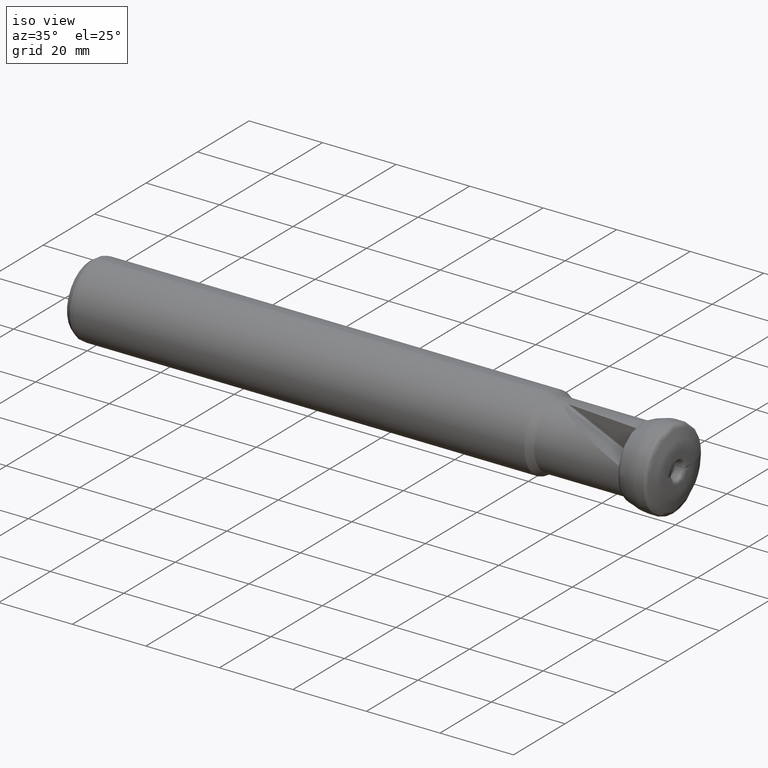
[diagram: clean part render]
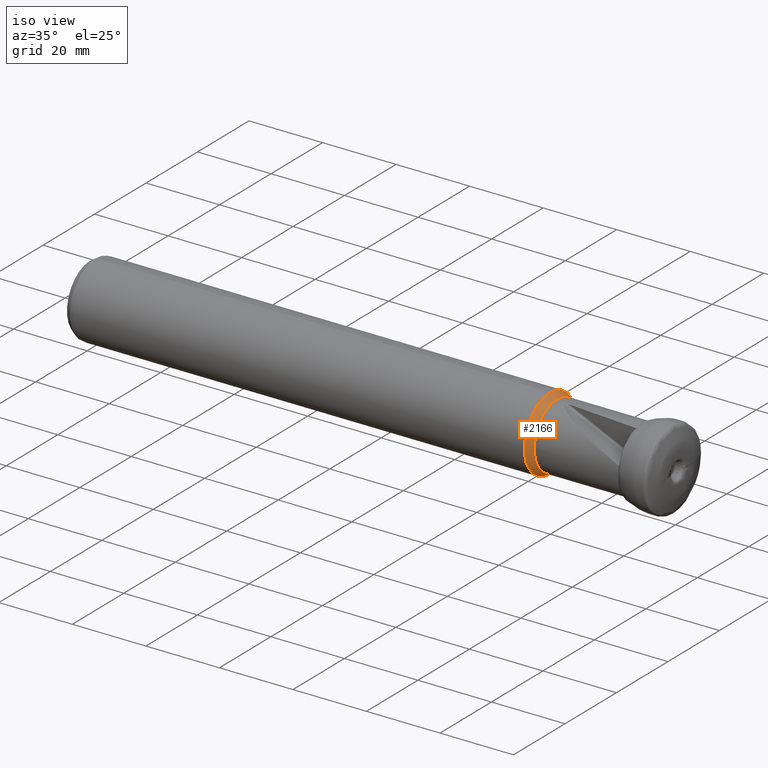
[diagram: same view with one face highlighted and labeled with its STEP entity id]
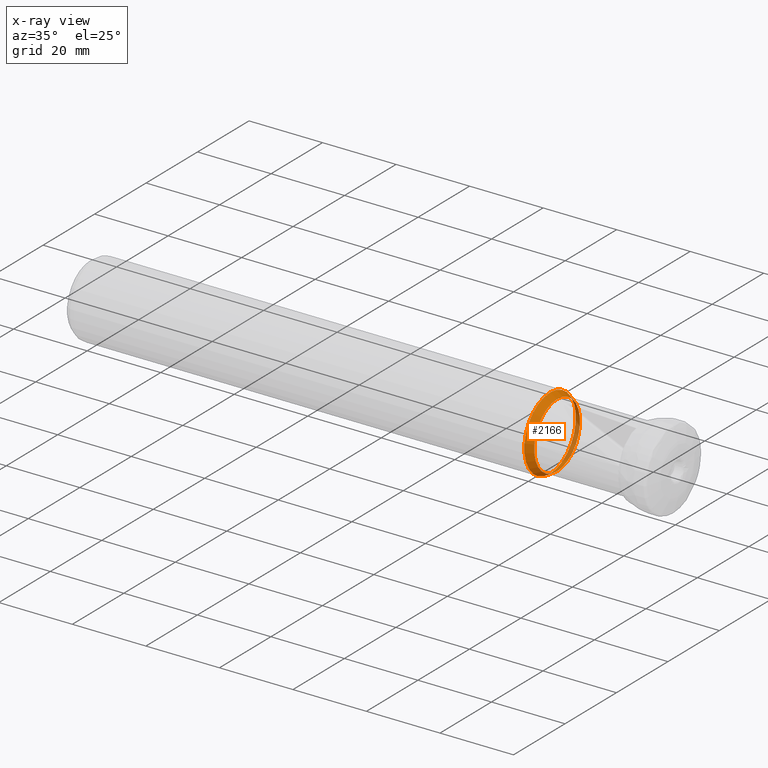
[diagram: x-ray of the same camera — body ghosted, the highlighted face saturated]
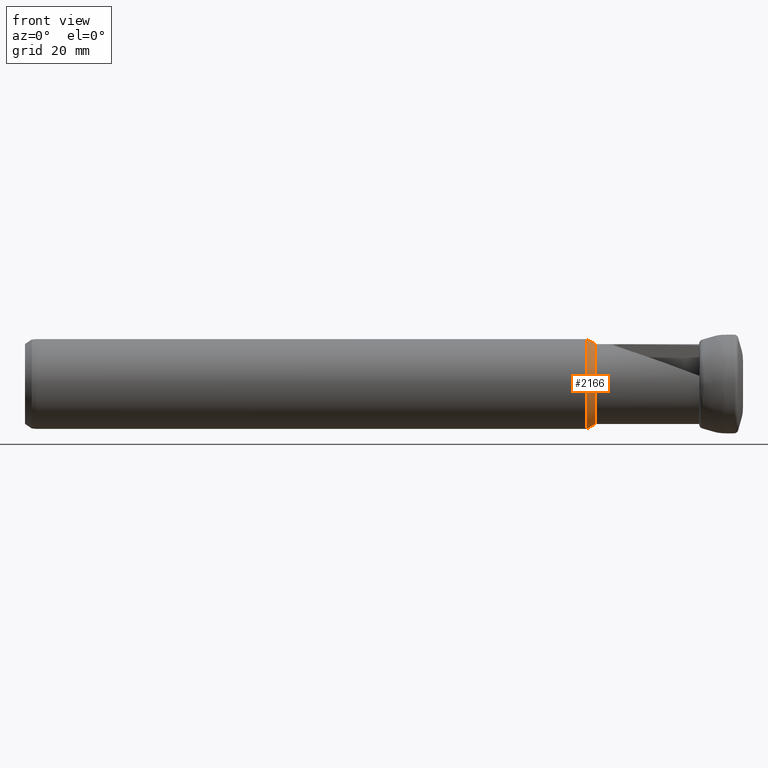
[diagram: same view with one face highlighted and labeled with its STEP entity id]
A machine part, iso view. The second image highlights one B-rep face of the part: STEP entity #2166.
The next image is the same camera in x-ray: the body ghosted, the highlighted face saturated — about 14% of this face is hidden behind the body in this view.
A second angle (front view) of the same face is appended — the face is thin or edge-on in the first view.
In plain terms, the highlighted conical surface has half-angle 30 deg.
Its self-contained STEP definition (entity closure, byte-faithful):
#27 = EDGE_LOOP ( 'NONE', ( #474 ) ) ;
#172 = EDGE_CURVE ( 'NONE', #1425, #1425, #1428, .T. ) ;
#192 = AXIS2_PLACEMENT_3D ( 'NONE', #403, #741, #212 ) ;
#212 = DIRECTION ( 'NONE',  ( 0.0000000000000000000, 0.0000000000000000000, 1.000000000000000000 ) ) ;
#398 = AXIS2_PLACEMENT_3D ( 'NONE', #1990, #958, #2163 ) ;
#403 = CARTESIAN_POINT ( 'NONE',  ( -32.16253903091737200, 0.0000000000000000000, 0.0000000000000000000 ) ) ;
#474 = ORIENTED_EDGE ( 'NONE', *, *, #172, .F. ) ;
#483 = AXIS2_PLACEMENT_3D ( 'NONE', #1885, #855, #1030 ) ;
#741 = DIRECTION ( 'NONE',  ( -1.000000000000000000, 0.0000000000000000000, 0.0000000000000000000 ) ) ;
#767 = CARTESIAN_POINT ( 'NONE',  ( -32.16253903091737200, 0.0000000000000000000, -8.899999999999995000 ) ) ;
#855 = DIRECTION ( 'NONE',  ( 1.000000000000000000, -0.0000000000000000000, -0.0000000000000000000 ) ) ;
#887 = CIRCLE ( 'NONE', #398, 10.00000000000000000 ) ;
#958 = DIRECTION ( 'NONE',  ( 1.000000000000000000, -0.0000000000000000000, -0.0000000000000000000 ) ) ;
#960 = ORIENTED_EDGE ( 'NONE', *, *, #1152, .T. ) ;
#1018 = CONICAL_SURFACE ( 'NONE', #192, 8.899999999999995000, 0.5235987755982990400 ) ;
#1030 = DIRECTION ( 'NONE',  ( 0.0000000000000000000, 0.0000000000000000000, -1.000000000000000000 ) ) ;
#1048 = EDGE_LOOP ( 'NONE', ( #960 ) ) ;
#1152 = EDGE_CURVE ( 'NONE', #2095, #2095, #887, .T. ) ;
#1284 = FACE_BOUND ( 'NONE', #27, .T. ) ;
#1425 = VERTEX_POINT ( 'NONE', #767 ) ;
#1428 = CIRCLE ( 'NONE', #483, 8.899999999999995000 ) ;
#1885 = CARTESIAN_POINT ( 'NONE',  ( -32.16253903091737200, 0.0000000000000000000, 0.0000000000000000000 ) ) ;
#1983 = FACE_OUTER_BOUND ( 'NONE', #1048, .T. ) ;
#1990 = CARTESIAN_POINT ( 'NONE',  ( -34.06779491924314800, 0.0000000000000000000, 0.0000000000000000000 ) ) ;
#2095 = VERTEX_POINT ( 'NONE', #2145 ) ;
#2145 = CARTESIAN_POINT ( 'NONE',  ( -34.06779491924314800, 0.0000000000000000000, 10.00000000000000000 ) ) ;
#2163 = DIRECTION ( 'NONE',  ( 0.0000000000000000000, 0.0000000000000000000, 1.000000000000000000 ) ) ;
#2166 = ADVANCED_FACE ( 'NONE', ( #1284, #1983 ), #1018, .T. ) ;